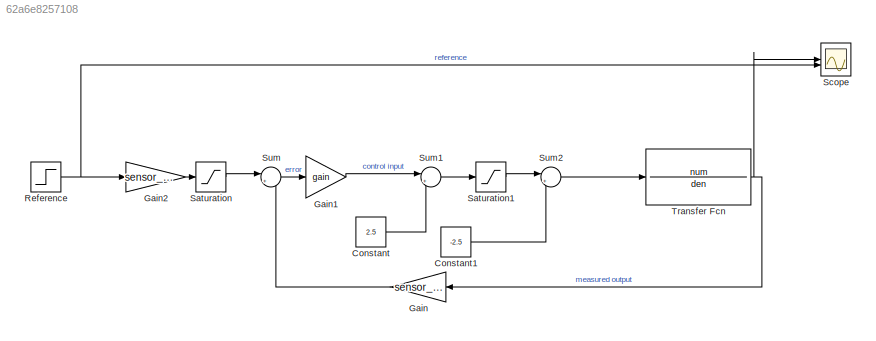
MODEL slx_62a6e8257108
KIND model
CONFIG AbsTol = auto
CONFIG EnableMultiTasking = on
CONFIG FixedStep = auto
CONFIG MaxStep = 0.01
CONFIG MinStep = auto
CONFIG RelTol = 1e-4
CONFIG SampleTimeConstraint = Unconstrained
CONFIG SolverName = VariableStepAuto
CONFIG StartTime = 0.0
CONFIG StopTime = 100
BLOCK [Constant] Constant
  Value = 2.5
BLOCK [Constant] Constant1
  Value = -2.5
BLOCK [Gain] Gain
  Gain = sensor_constant
  NameLocation = top
BLOCK [Gain] Gain1
  Gain = gain
BLOCK [Gain] Gain2
  Gain = sensor_constant
BLOCK [Step] Reference
  After = 5
  SampleTime = 0
BLOCK [Saturate] Saturation
  LowerLimit = 0
  UpperLimit = 5
BLOCK [Saturate] Saturation1
  LowerLimit = 0
  UpperLimit = 5
BLOCK [Scope] Scope
  Floating = off
  NumInputPorts = 2
  ScopeSpecificationString = Simulink.scopes.TimeScopeBlockCfg('CurrentConfiguration', extmgr.ConfigurationSet(extmgr.Configuration('Core','General UI',true,'DisplayFullSourceName',true),extmgr.Configuration('Core','Source UI',true),extmgr.Configuration('Sources','WiredSimulink',true,'DataLoggingLimitDataPoints',true,'DataLoggingMaxPoints','50000'),extmgr.Configuration('Visuals','Time Domain',true,'SerializedDisplays',{struct...<+1986ch>
BLOCK [Sum] Sum
  Inputs = |+-
BLOCK [Sum] Sum1
  Inputs = |++
BLOCK [Sum] Sum2
  Inputs = |++
BLOCK [TransferFcn] Transfer Fcn
  Denominator = den
  Numerator = num
LINE Constant1:1 -> Sum2:2
LINE Constant:1 -> Sum1:2
LINE Gain1:1 -> Sum1:1
LINE Gain2:1 -> Saturation:1
LINE Gain:1 -> Sum:2
NET Reference:1 -> Gain2:1, Scope:2
LINE Saturation1:1 -> Sum2:1
LINE Saturation:1 -> Sum:1
LINE Sum1:1 -> Saturation1:1
LINE Sum2:1 -> Transfer Fcn:1
LINE Sum:1 -> Gain1:1
NET Transfer Fcn:1 -> Gain:1, Scope:1
note: NET lines group one-source signal fan-out (src -> all destinations, sorted); 1:1 wires keep LINE
